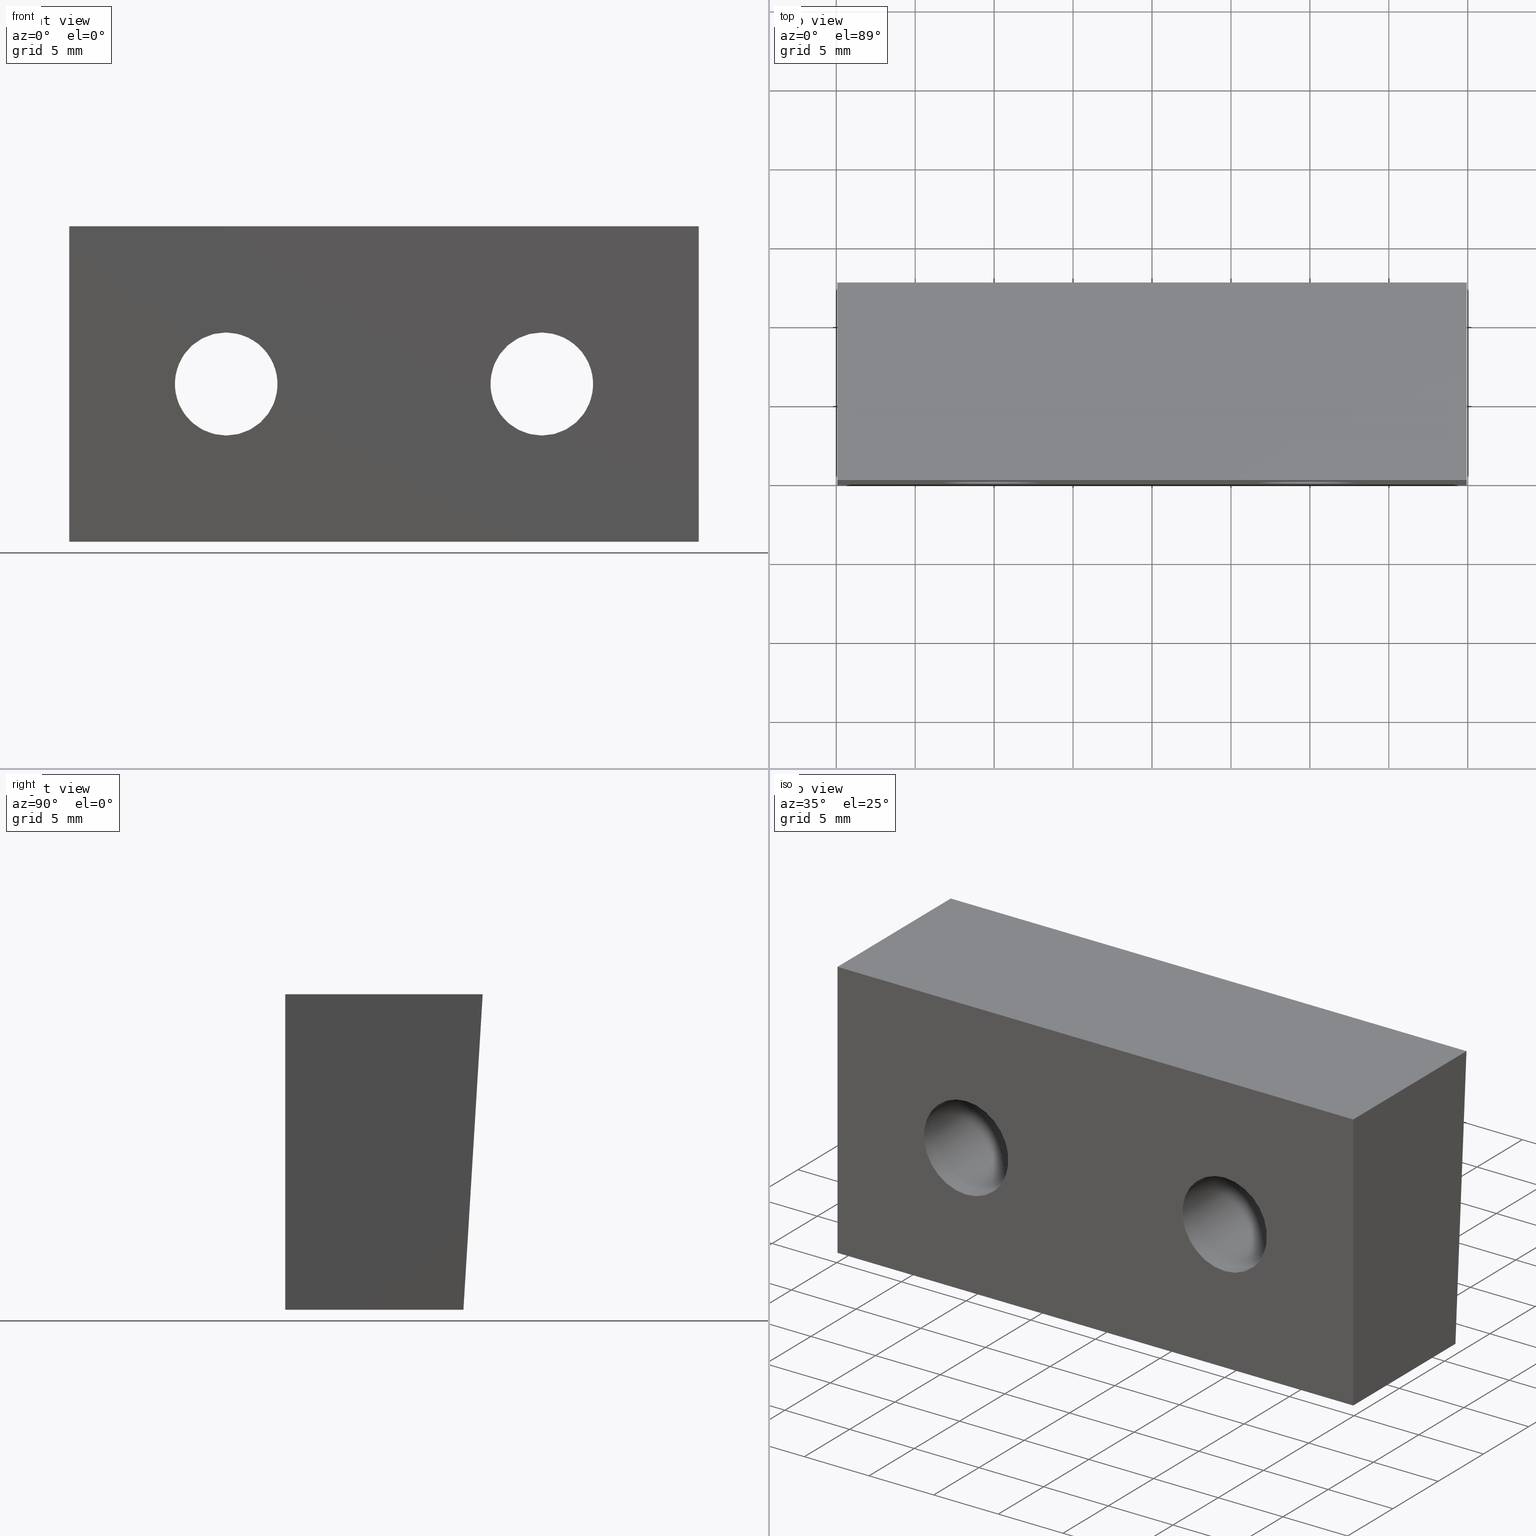
[diagram: canonical four-view strip — front | top / right | iso, engineering-drawing reading convention]
A machine part, canonical four-view strip (front | top / right | iso — engineering-drawing reading convention). The complete STEP part file that produces these views, byte-faithful:
ISO-10303-21;
HEADER;
FILE_DESCRIPTION (( 'STEP AP203' ),
    '1' );
FILE_NAME ('D030466-v2_aLIGO_SUS_HSTS_Upper Blade Clamp, Lower Side, Angled 3.5.STEP',
    '2010-06-24T14:01:29',
    ( 'Dwayne Giardina' ),
    ( 'CA Institute of Technology' ),
    'SwSTEP 2.0',
    'SolidWorks 2009',
    '' );
FILE_SCHEMA (( 'CONFIG_CONTROL_DESIGN' ));
ENDSEC;

DATA;
#1 = UNCERTAINTY_MEASURE_WITH_UNIT (LENGTH_MEASURE( 1.000000000000000100E-005 ), #109, 'distance_accuracy_value', 'NONE');
#2 = ADVANCED_BREP_SHAPE_REPRESENTATION ( 'D030466-v2_aLIGO_SUS_HSTS_Upper Blade Clamp, Lower Side, Angled 3.5', ( #388, #275 ), #19 ) ;
#3 = VECTOR ( 'NONE', #107, 39.37007874015748100 ) ;
#4 = CIRCLE ( 'NONE', #272, 0.1285000000000000000 ) ;
#5 = LINE ( 'NONE', #106, #12 ) ;
#6 = LINE ( 'NONE', #105, #3 ) ;
#7 = VECTOR ( 'NONE', #101, 39.37007874015748100 ) ;
#8 = LINE ( 'NONE', #99, #7 ) ;
#9 = VECTOR ( 'NONE', #100, 39.37007874015748100 ) ;
#10 = CIRCLE ( 'NONE', #273, 0.1285000000000000900 ) ;
#11 = LINE ( 'NONE', #155, #9 ) ;
#12 = VECTOR ( 'NONE', #108, 39.37007874015748100 ) ;
#13 = VECTOR ( 'NONE', #161, 39.37007874015748900 ) ;
#14 = LINE ( 'NONE', #162, #13 ) ;
#15 = VECTOR ( 'NONE', #160, 39.37007874015748100 ) ;
#16 = LINE ( 'NONE', #159, #15 ) ;
#17 = VECTOR ( 'NONE', #158, 39.37007874015748100 ) ;
#18 = LENGTH_MEASURE_WITH_UNIT ( LENGTH_MEASURE( 0.02539999999999999900 ), #110 );
#19 =( GEOMETRIC_REPRESENTATION_CONTEXT ( 3 ) GLOBAL_UNCERTAINTY_ASSIGNED_CONTEXT ( ( #1 ) ) GLOBAL_UNIT_ASSIGNED_CONTEXT ( ( #109, #102, #103 ) ) REPRESENTATION_CONTEXT ( 'NONE', 'WORKASPACE' ) );
#20 = PERSON_AND_ORGANIZATION ( #292, #55 ) ;
#21 = SECURITY_CLASSIFICATION ( '', '', #104 ) ;
#22 = LOCAL_TIME ( 9, 1, 29.00000000000000000, #47 ) ;
#23 = CALENDAR_DATE ( 2010, 24, 6 ) ;
#24 = DATE_AND_TIME ( #25, #36 ) ;
#25 = CALENDAR_DATE ( 2010, 24, 6 ) ;
#26 = APPROVAL_PERSON_ORGANIZATION ( #51, #288, #173 ) ;
#27 = COORDINATED_UNIVERSAL_TIME_OFFSET ( 6, 0, .BEHIND. ) ;
#28 = PERSON_AND_ORGANIZATION ( #292, #55 ) ;
#29 = APPROVAL_PERSON_ORGANIZATION ( #28, #282, #151 ) ;
#30 = COORDINATED_UNIVERSAL_TIME_OFFSET ( 6, 0, .BEHIND. ) ;
#31 = LOCAL_TIME ( 9, 1, 29.00000000000000000, #30 ) ;
#32 = DATE_AND_TIME ( #42, #43 ) ;
#33 = APPROVAL_DATE_TIME ( #32, #288 ) ;
#34 = APPROVAL_PERSON_ORGANIZATION ( #35, #277, #217 ) ;
#35 = PERSON_AND_ORGANIZATION ( #292, #55 ) ;
#36 = LOCAL_TIME ( 9, 1, 29.00000000000000000, #37 ) ;
#37 = COORDINATED_UNIVERSAL_TIME_OFFSET ( 6, 0, .BEHIND. ) ;
#38 = APPROVAL_DATE_TIME ( #41, #282 ) ;
#39 = PERSON_AND_ORGANIZATION ( #292, #55 ) ;
#40 = CALENDAR_DATE ( 2010, 24, 6 ) ;
#41 = DATE_AND_TIME ( #40, #49 ) ;
#42 = CALENDAR_DATE ( 2010, 24, 6 ) ;
#43 = LOCAL_TIME ( 9, 1, 29.00000000000000000, #27 ) ;
#44 = CALENDAR_DATE ( 2010, 24, 6 ) ;
#45 = DATE_AND_TIME ( #44, #31 ) ;
#46 = PERSON_AND_ORGANIZATION ( #292, #55 ) ;
#47 = COORDINATED_UNIVERSAL_TIME_OFFSET ( 6, 0, .BEHIND. ) ;
#48 = COORDINATED_UNIVERSAL_TIME_OFFSET ( 6, 0, .BEHIND. ) ;
#49 = LOCAL_TIME ( 9, 1, 29.00000000000000000, #48 ) ;
#50 = DATE_AND_TIME ( #23, #22 ) ;
#51 = PERSON_AND_ORGANIZATION ( #292, #55 ) ;
#52 = APPROVAL_DATE_TIME ( #24, #277 ) ;
#53 = PERSON_AND_ORGANIZATION ( #292, #55 ) ;
#54 = PERSON_AND_ORGANIZATION ( #292, #55 ) ;
#55 = ORGANIZATION ( 'UNSPECIFIED', 'UNSPECIFIED', '' ) ;
#56 = SHAPE_DEFINITION_REPRESENTATION ( #66, #2 ) ;
#57 = LINE ( 'NONE', #157, #63 ) ;
#58 = LINE ( 'NONE', #114, #60 ) ;
#59 = LINE ( 'NONE', #156, #17 ) ;
#60 = VECTOR ( 'NONE', #119, 39.37007874015748100 ) ;
#61 = LINE ( 'NONE', #127, #64 ) ;
#62 = VECTOR ( 'NONE', #129, 39.37007874015748100 ) ;
#63 = VECTOR ( 'NONE', #153, 39.37007874015748100 ) ;
#64 = VECTOR ( 'NONE', #126, 39.37007874015748100 ) ;
#65 =( BOUNDED_CURVE ( )  B_SPLINE_CURVE ( 3, ( #133, #143, #142, #141 ),
 .UNSPECIFIED., .F., .T. ) 
 B_SPLINE_CURVE_WITH_KNOTS ( ( 4, 4 ),
 ( 3.141592653589791300, 6.283185307179583600 ),
 .UNSPECIFIED. ) 
 CURVE ( )  GEOMETRIC_REPRESENTATION_ITEM ( )  RATIONAL_B_SPLINE_CURVE ( ( 1.000000000000000000, 0.3333333333333337000, 0.3333333333333337000, 1.000000000000000000 ) ) 
 REPRESENTATION_ITEM ( '' )  );
#66 = PRODUCT_DEFINITION_SHAPE ( 'NONE', 'NONE',  #274 ) ;
#67 =( BOUNDED_CURVE ( )  B_SPLINE_CURVE ( 3, ( #118, #117, #116, #115 ),
 .UNSPECIFIED., .F., .T. ) 
 B_SPLINE_CURVE_WITH_KNOTS ( ( 4, 4 ),
 ( 3.141592653589791300, 6.283185307179583600 ),
 .UNSPECIFIED. ) 
 CURVE ( )  GEOMETRIC_REPRESENTATION_ITEM ( )  RATIONAL_B_SPLINE_CURVE ( ( 1.000000000000000000, 0.3333333333333337000, 0.3333333333333337000, 1.000000000000000000 ) ) 
 REPRESENTATION_ITEM ( '' )  );
#68 =( BOUNDED_CURVE ( )  B_SPLINE_CURVE ( 3, ( #134, #139, #146, #147 ),
 .UNSPECIFIED., .F., .T. ) 
 B_SPLINE_CURVE_WITH_KNOTS ( ( 4, 4 ),
 ( -2.664535259100375700E-015, 3.141592653589791300 ),
 .UNSPECIFIED. ) 
 CURVE ( )  GEOMETRIC_REPRESENTATION_ITEM ( )  RATIONAL_B_SPLINE_CURVE ( ( 1.000000000000000000, 0.3333333333333330400, 0.3333333333333330400, 1.000000000000000000 ) ) 
 REPRESENTATION_ITEM ( '' )  );
#69 = DESIGN_CONTEXT ( 'detailed design', #214, 'design' ) ;
#70 =( BOUNDED_CURVE ( )  B_SPLINE_CURVE ( 3, ( #148, #136, #137, #75 ),
 .UNSPECIFIED., .F., .T. ) 
 B_SPLINE_CURVE_WITH_KNOTS ( ( 4, 4 ),
 ( -2.664535259100375700E-015, 3.141592653589791300 ),
 .UNSPECIFIED. ) 
 CURVE ( )  GEOMETRIC_REPRESENTATION_ITEM ( )  RATIONAL_B_SPLINE_CURVE ( ( 1.000000000000000000, 0.3333333333333330400, 0.3333333333333330400, 1.000000000000000000 ) ) 
 REPRESENTATION_ITEM ( '' )  );
#71 = DIRECTION ( 'NONE',  ( -0.0000000000000000000, 1.000000000000000000, -0.0000000000000000000 ) ) ;
#72 = CARTESIAN_POINT ( 'NONE',  ( 0.3934999999999999100, 0.8697919056601218800, -0.2650000000000000700 ) ) ;
#73 = CARTESIAN_POINT ( 'NONE',  ( -0.3935000000000000700, -0.3634528855298855300, -0.3934999999999999600 ) ) ;
#74 = CARTESIAN_POINT ( 'NONE',  ( -0.3935000000000000700, 0.8697919056601218800, -0.2649999999999999000 ) ) ;
#75 = CARTESIAN_POINT ( 'NONE',  ( -0.3935000000000000700, 0.8540731122814473300, -0.5220000000000000200 ) ) ;
#76 = DIRECTION ( 'NONE',  ( -0.0000000000000000000, 1.000000000000000000, 0.0000000000000000000 ) ) ;
#77 = DIRECTION ( 'NONE',  ( -1.000000000000000000, -0.0000000000000000000, -0.0000000000000000000 ) ) ;
#78 = PLANE ( 'NONE',  #264 ) ;
#79 = PLANE ( 'NONE',  #269 ) ;
#80 = CARTESIAN_POINT ( 'NONE',  ( -0.7850000000000001400, 2.632903660718108000E-017, -0.7869999999999999200 ) ) ;
#81 = DIRECTION ( 'NONE',  ( 0.0000000000000000000, 0.0000000000000000000, -1.000000000000000000 ) ) ;
#82 = PLANE ( 'NONE',  #268 ) ;
#83 = CARTESIAN_POINT ( 'NONE',  ( -0.7850000000000001400, 0.8860000000000000100, 0.0000000000000000000 ) ) ;
#84 = DIRECTION ( 'NONE',  ( -1.000000000000000000, -0.0000000000000000000, -0.0000000000000000000 ) ) ;
#85 = DIRECTION ( 'NONE',  ( 0.0000000000000000000, 0.0000000000000000000, 1.000000000000000000 ) ) ;
#86 = DATE_TIME_ROLE ( 'classification_date' ) ;
#87 = APPROVAL_STATUS ( 'not_yet_approved' ) ;
#88 = CARTESIAN_POINT ( 'NONE',  ( -0.7850000000000001400, 0.3937007874015748300, 0.0000000000000000000 ) ) ;
#89 = CARTESIAN_POINT ( 'NONE',  ( -1.573470656713212800, 0.8859999999999996800, 0.0000000000000000000 ) ) ;
#90 = DIRECTION ( 'NONE',  ( 1.538799405460079400E-016, -0.9981347984218670300, 0.06104853953485694900 ) ) ;
#91 = DIRECTION ( 'NONE',  ( 0.0000000000000000000, -0.06104853953485694200, -0.9981347984218669200 ) ) ;
#92 = VERTEX_POINT ( 'NONE', #221 ) ;
#93 = DIRECTION ( 'NONE',  ( 1.000000000000000000, 0.0000000000000000000, 0.0000000000000000000 ) ) ;
#94 = PERSON_AND_ORGANIZATION_ROLE ( 'design_supplier' ) ;
#95 = DIRECTION ( 'NONE',  ( 0.0000000000000000000, -1.000000000000000000, -0.0000000000000000000 ) ) ;
#96 = VERTEX_POINT ( 'NONE', #192 ) ;
#97 = DIRECTION ( 'NONE',  ( 0.0000000000000000000, 0.0000000000000000000, 1.000000000000000000 ) ) ;
#98 = CARTESIAN_POINT ( 'NONE',  ( -0.3935000000000000700, 0.3937007874015748800, -0.3934999999999999600 ) ) ;
#99 = CARTESIAN_POINT ( 'NONE',  ( 0.7850000000000001400, 0.3937007874015748300, -2.405610610987281500 ) ) ;
#100 = DIRECTION ( 'NONE',  ( -0.0000000000000000000, 1.000000000000000000, -0.0000000000000000000 ) ) ;
#101 = DIRECTION ( 'NONE',  ( -0.0000000000000000000, -0.0000000000000000000, 1.000000000000000000 ) ) ;
#102 =( NAMED_UNIT ( * ) PLANE_ANGLE_UNIT ( ) SI_UNIT ( $, .RADIAN. ) );
#103 =( NAMED_UNIT ( * ) SI_UNIT ( $, .STERADIAN. ) SOLID_ANGLE_UNIT ( ) );
#104 = SECURITY_CLASSIFICATION_LEVEL ( 'unclassified' ) ;
#105 = CARTESIAN_POINT ( 'NONE',  ( 0.7849999999999999200, 0.8860000000000000100, -0.7869999999999999200 ) ) ;
#106 = CARTESIAN_POINT ( 'NONE',  ( -0.3935000000000000700, -0.3634528855298855300, -0.2649999999999999000 ) ) ;
#107 = DIRECTION ( 'NONE',  ( -1.541674939991119000E-016, 1.000000000000000000, -0.0000000000000000000 ) ) ;
#108 = DIRECTION ( 'NONE',  ( -0.0000000000000000000, 1.000000000000000000, -0.0000000000000000000 ) ) ;
#109 =( CONVERSION_BASED_UNIT ( 'INCH', #18 ) LENGTH_UNIT ( ) NAMED_UNIT ( #233 ) );
#110 =( LENGTH_UNIT ( ) NAMED_UNIT ( * ) SI_UNIT ( $, .METRE. ) );
#111 = DIRECTION ( 'NONE',  ( -1.000000000000000000, 0.0000000000000000000, 0.0000000000000000000 ) ) ;
#112 = DIRECTION ( 'NONE',  ( 0.0000000000000000000, -1.000000000000000000, -0.0000000000000000000 ) ) ;
#113 = DIRECTION ( 'NONE',  ( 0.0000000000000000000, 0.0000000000000000000, 1.000000000000000000 ) ) ;
#114 = CARTESIAN_POINT ( 'NONE',  ( -0.7850000000000001400, 0.8859999999999997900, -7.407008177334549300E-018 ) ) ;
#115 = CARTESIAN_POINT ( 'NONE',  ( 0.3934999999999999100, 0.8697919056601218800, -0.2650000000000000700 ) ) ;
#116 = CARTESIAN_POINT ( 'NONE',  ( 0.1365000000000001800, 0.8697919056601217700, -0.2650000000000000700 ) ) ;
#117 = CARTESIAN_POINT ( 'NONE',  ( 0.1365000000000001500, 0.8540731122814472200, -0.5220000000000000200 ) ) ;
#118 = CARTESIAN_POINT ( 'NONE',  ( 0.3934999999999999100, 0.8540731122814473300, -0.5220000000000000200 ) ) ;
#119 = DIRECTION ( 'NONE',  ( 0.0000000000000000000, -0.06104853953485692800, -0.9981347984218669200 ) ) ;
#120 = DIRECTION ( 'NONE',  ( 0.0000000000000000000, -1.000000000000000000, -0.0000000000000000000 ) ) ;
#121 = DIRECTION ( 'NONE',  ( 0.0000000000000000000, 0.0000000000000000000, 1.000000000000000000 ) ) ;
#122 = CARTESIAN_POINT ( 'NONE',  ( 0.0000000000000000000, 0.0000000000000000000, 0.0000000000000000000 ) ) ;
#123 = DIRECTION ( 'NONE',  ( 0.0000000000000000000, -1.000000000000000000, -0.0000000000000000000 ) ) ;
#124 = DIRECTION ( 'NONE',  ( 0.0000000000000000000, 0.0000000000000000000, 1.000000000000000000 ) ) ;
#125 = CARTESIAN_POINT ( 'NONE',  ( 0.3934999999999999100, 0.3937007874015748800, -0.3935000000000000700 ) ) ;
#126 = DIRECTION ( 'NONE',  ( -0.0000000000000000000, 1.000000000000000000, -0.0000000000000000000 ) ) ;
#127 = CARTESIAN_POINT ( 'NONE',  ( 0.3934999999999999100, -0.3634528855298855300, -0.5220000000000000200 ) ) ;
#128 = CARTESIAN_POINT ( 'NONE',  ( -0.7850000000000001400, 0.3937007874015748300, -0.7870000000000001400 ) ) ;
#129 = DIRECTION ( 'NONE',  ( -1.541674939991119000E-016, 1.000000000000000000, -0.0000000000000000000 ) ) ;
#130 = CARTESIAN_POINT ( 'NONE',  ( -0.3935000000000000700, 0.3937007874015748800, -0.3934999999999999600 ) ) ;
#131 = CARTESIAN_POINT ( 'NONE',  ( 0.7849999999999999200, 0.8860000000000000100, 0.0000000000000000000 ) ) ;
#132 = DIRECTION ( 'NONE',  ( 1.000000000000000000, 1.541674939991119000E-016, -0.0000000000000000000 ) ) ;
#133 = CARTESIAN_POINT ( 'NONE',  ( -0.3935000000000000700, 0.8540731122814473300, -0.5220000000000000200 ) ) ;
#134 = CARTESIAN_POINT ( 'NONE',  ( 0.3934999999999999100, 0.8697919056601218800, -0.2650000000000000700 ) ) ;
#135 = CARTESIAN_POINT ( 'NONE',  ( 0.3934999999999999100, 0.3937007874015748800, -0.3935000000000000700 ) ) ;
#136 = CARTESIAN_POINT ( 'NONE',  ( -0.1364999999999997000, 0.8697919056601216600, -0.2649999999999998500 ) ) ;
#137 = CARTESIAN_POINT ( 'NONE',  ( -0.1364999999999997600, 0.8540731122814473300, -0.5220000000000002400 ) ) ;
#138 = DIRECTION ( 'NONE',  ( 0.0000000000000000000, 0.0000000000000000000, 1.000000000000000000 ) ) ;
#139 = CARTESIAN_POINT ( 'NONE',  ( 0.6505000000000001900, 0.8697919056601216600, -0.2650000000000000100 ) ) ;
#140 = CARTESIAN_POINT ( 'NONE',  ( -1.573470656713212800, 0.8378650179415684200, -0.7869999999999999200 ) ) ;
#141 = CARTESIAN_POINT ( 'NONE',  ( -0.3935000000000000700, 0.8697919056601218800, -0.2649999999999999000 ) ) ;
#142 = CARTESIAN_POINT ( 'NONE',  ( -0.6504999999999999700, 0.8697919056601217700, -0.2649999999999999600 ) ) ;
#143 = CARTESIAN_POINT ( 'NONE',  ( -0.6504999999999999700, 0.8540731122814472200, -0.5220000000000000200 ) ) ;
#144 = CARTESIAN_POINT ( 'NONE',  ( -0.3935000000000000700, -0.3634528855298855300, -0.5220000000000000200 ) ) ;
#145 = DIRECTION ( 'NONE',  ( -0.0000000000000000000, 1.000000000000000000, -0.0000000000000000000 ) ) ;
#146 = CARTESIAN_POINT ( 'NONE',  ( 0.6505000000000000800, 0.8540731122814473300, -0.5220000000000002400 ) ) ;
#147 = CARTESIAN_POINT ( 'NONE',  ( 0.3934999999999999100, 0.8540731122814473300, -0.5220000000000000200 ) ) ;
#148 = CARTESIAN_POINT ( 'NONE',  ( -0.3935000000000000700, 0.8697919056601218800, -0.2649999999999999000 ) ) ;
#149 = VERTEX_POINT ( 'NONE', #193 ) ;
#150 = PERSON_AND_ORGANIZATION_ROLE ( 'creator' ) ;
#151 = APPROVAL_ROLE ( '' ) ;
#152 = VERTEX_POINT ( 'NONE', #187 ) ;
#153 = DIRECTION ( 'NONE',  ( -0.0000000000000000000, -1.000000000000000000, -0.0000000000000000000 ) ) ;
#154 = VERTEX_POINT ( 'NONE', #183 ) ;
#155 = CARTESIAN_POINT ( 'NONE',  ( 0.3934999999999999100, -0.3634528855298855300, -0.2650000000000000700 ) ) ;
#156 = CARTESIAN_POINT ( 'NONE',  ( -0.7850000000000001400, 0.3937007874015748300, -2.405610610987281500 ) ) ;
#157 = CARTESIAN_POINT ( 'NONE',  ( -0.7850000000000001400, -9.613159877505663000E-017, -0.7869999999999999200 ) ) ;
#158 = DIRECTION ( 'NONE',  ( -0.0000000000000000000, -0.0000000000000000000, 1.000000000000000000 ) ) ;
#159 = CARTESIAN_POINT ( 'NONE',  ( -0.7850000000000001400, -9.613159877505663000E-017, 0.0000000000000000000 ) ) ;
#160 = DIRECTION ( 'NONE',  ( -0.0000000000000000000, -1.000000000000000000, -0.0000000000000000000 ) ) ;
#161 = DIRECTION ( 'NONE',  ( 0.0000000000000000000, -0.06104853953485694200, -0.9981347984218669200 ) ) ;
#162 = CARTESIAN_POINT ( 'NONE',  ( 0.7849999999999999200, 0.8860000000000000100, 0.0000000000000000000 ) ) ;
#163 = VERTEX_POINT ( 'NONE', #191 ) ;
#164 = PLANE ( 'NONE',  #263 ) ;
#165 = CARTESIAN_POINT ( 'NONE',  ( 0.7850000000000001400, 0.3937007874015748300, 0.0000000000000000000 ) ) ;
#166 = DIRECTION ( 'NONE',  ( -1.000000000000000000, 0.0000000000000000000, -0.0000000000000000000 ) ) ;
#167 = DIRECTION ( 'NONE',  ( 0.0000000000000000000, 0.0000000000000000000, 1.000000000000000000 ) ) ;
#168 = DIRECTION ( 'NONE',  ( -0.0000000000000000000, 1.000000000000000000, -0.0000000000000000000 ) ) ;
#169 = DIRECTION ( 'NONE',  ( 0.0000000000000000000, 0.0000000000000000000, 1.000000000000000000 ) ) ;
#170 = DIRECTION ( 'NONE',  ( -0.0000000000000000000, 1.000000000000000000, -0.0000000000000000000 ) ) ;
#171 = CARTESIAN_POINT ( 'NONE',  ( 0.3934999999999999100, -0.3634528855298855300, -0.3935000000000000700 ) ) ;
#172 = CARTESIAN_POINT ( 'NONE',  ( -0.3935000000000000700, -0.3634528855298855300, -0.3934999999999999600 ) ) ;
#173 = APPROVAL_ROLE ( '' ) ;
#174 = PERSON_AND_ORGANIZATION_ROLE ( 'classification_officer' ) ;
#175 = DIRECTION ( 'NONE',  ( 0.0000000000000000000, -0.0000000000000000000, 1.000000000000000000 ) ) ;
#176 = DIRECTION ( 'NONE',  ( -1.000000000000000000, 0.0000000000000000000, -0.0000000000000000000 ) ) ;
#177 = DIRECTION ( 'NONE',  ( 0.0000000000000000000, 0.0000000000000000000, -1.000000000000000000 ) ) ;
#178 = CARTESIAN_POINT ( 'NONE',  ( -0.7850000000000001400, 0.3937007874015748300, -2.405610610987281500 ) ) ;
#179 = DIRECTION ( 'NONE',  ( 0.0000000000000000000, 0.0000000000000000000, 1.000000000000000000 ) ) ;
#180 = DIRECTION ( 'NONE',  ( -1.541674939991119000E-016, 1.000000000000000000, 0.0000000000000000000 ) ) ;
#181 = PLANE ( 'NONE',  #262 ) ;
#182 = DIRECTION ( 'NONE',  ( -0.0000000000000000000, 1.000000000000000000, -0.0000000000000000000 ) ) ;
#183 = CARTESIAN_POINT ( 'NONE',  ( 0.7849999999999999200, 0.8860000000000000100, 0.0000000000000000000 ) ) ;
#184 = CARTESIAN_POINT ( 'NONE',  ( 0.3934999999999999100, 0.8540731122814473300, -0.5220000000000000200 ) ) ;
#185 = CARTESIAN_POINT ( 'NONE',  ( 0.3934999999999999100, 0.3937007874015748800, -0.2650000000000000700 ) ) ;
#186 = CARTESIAN_POINT ( 'NONE',  ( -0.7850000000000001400, 0.3937007874015748300, 0.0000000000000000000 ) ) ;
#187 = CARTESIAN_POINT ( 'NONE',  ( 0.7849999999999999200, 0.8378650179415688700, -0.7869999999999999200 ) ) ;
#188 = CARTESIAN_POINT ( 'NONE',  ( -0.7850000000000001400, -9.613159877505663000E-017, -0.7869999999999999200 ) ) ;
#189 = CARTESIAN_POINT ( 'NONE',  ( -0.3935000000000000700, 0.3937007874015748800, -0.2649999999999999000 ) ) ;
#190 = CARTESIAN_POINT ( 'NONE',  ( -0.7850000000000001400, 0.8860000000000000100, 0.0000000000000000000 ) ) ;
#191 = CARTESIAN_POINT ( 'NONE',  ( 0.7850000000000001400, 0.3937007874015748300, -0.7870000000000001400 ) ) ;
#192 = CARTESIAN_POINT ( 'NONE',  ( -0.3935000000000000700, 0.3937007874015748800, -0.5220000000000000200 ) ) ;
#193 = CARTESIAN_POINT ( 'NONE',  ( 0.3934999999999999100, 0.3937007874015748800, -0.5220000000000000200 ) ) ;
#194 = DIRECTION ( 'NONE',  ( 0.0000000000000000000, 0.0000000000000000000, 1.000000000000000000 ) ) ;
#195 = DIRECTION ( 'NONE',  ( -1.000000000000000000, 0.0000000000000000000, 0.0000000000000000000 ) ) ;
#196 = CARTESIAN_POINT ( 'NONE',  ( -0.7850000000000001400, 0.3937007874015748300, -0.7870000000000001400 ) ) ;
#197 = CARTESIAN_POINT ( 'NONE',  ( 0.3934999999999999100, -0.3634528855298855300, -0.3935000000000000700 ) ) ;
#198 = VERTEX_POINT ( 'NONE', #186 ) ;
#199 = VERTEX_POINT ( 'NONE', #184 ) ;
#200 = VERTEX_POINT ( 'NONE', #185 ) ;
#201 = VERTEX_POINT ( 'NONE', #189 ) ;
#202 = VERTEX_POINT ( 'NONE', #196 ) ;
#203 = APPROVAL_STATUS ( 'not_yet_approved' ) ;
#204 = DIRECTION ( 'NONE',  ( 1.000000000000000000, 1.541674939991119000E-016, -0.0000000000000000000 ) ) ;
#205 = CARTESIAN_POINT ( 'NONE',  ( -0.7850000000000001400, 0.8378650179415685400, -0.7869999999999999200 ) ) ;
#206 = CARTESIAN_POINT ( 'NONE',  ( 0.7849999999999999200, 0.8860000000000000100, -0.7869999999999999200 ) ) ;
#207 = MECHANICAL_CONTEXT ( 'NONE', #220, 'mechanical' ) ;
#208 = PERSON_AND_ORGANIZATION_ROLE ( 'creator' ) ;
#209 = VERTEX_POINT ( 'NONE', #190 ) ;
#210 = APPLICATION_PROTOCOL_DEFINITION ( 'international standard', 'config_control_design', 1994, #214 ) ;
#211 = VERTEX_POINT ( 'NONE', #165 ) ;
#212 = PLANE ( 'NONE',  #260 ) ;
#213 = DATE_TIME_ROLE ( 'creation_date' ) ;
#214 = APPLICATION_CONTEXT ( 'configuration controlled 3d designs of mechanical parts and assemblies' ) ;
#215 = PERSON_AND_ORGANIZATION_ROLE ( 'design_owner' ) ;
#216 = APPLICATION_PROTOCOL_DEFINITION ( 'international standard', 'config_control_design', 1994, #220 ) ;
#217 = APPROVAL_ROLE ( '' ) ;
#218 = APPROVAL_STATUS ( 'not_yet_approved' ) ;
#219 = VERTEX_POINT ( 'NONE', #74 ) ;
#220 = APPLICATION_CONTEXT ( 'configuration controlled 3d designs of mechanical parts and assemblies' ) ;
#221 = CARTESIAN_POINT ( 'NONE',  ( -0.3935000000000000700, 0.8540731122814473300, -0.5220000000000000200 ) ) ;
#222 = CARTESIAN_POINT ( 'NONE',  ( -0.7850000000000001400, 2.632903660718108000E-017, 0.0000000000000000000 ) ) ;
#223 = VERTEX_POINT ( 'NONE', #72 ) ;
#224 = VERTEX_POINT ( 'NONE', #205 ) ;
#225 = ADVANCED_FACE ( 'NONE', ( #331 ), #212, .T. ) ;
#226 = ADVANCED_FACE ( 'NONE', ( #316 ), #295, .F. ) ;
#227 = ADVANCED_FACE ( 'NONE', ( #382 ), #181, .T. ) ;
#228 = ADVANCED_FACE ( 'NONE', ( #341 ), #164, .F. ) ;
#229 = ADVANCED_FACE ( 'NONE', ( #326 ), #371, .F. ) ;
#230 = ADVANCED_FACE ( 'NONE', ( #301, #335, #314 ), #78, .F. ) ;
#231 = ADVANCED_FACE ( 'NONE', ( #334 ), #379, .F. ) ;
#232 = ADVANCED_FACE ( 'NONE', ( #322 ), #309, .F. ) ;
#233 = DIMENSIONAL_EXPONENTS ( 1.000000000000000000, 0.0000000000000000000, 0.0000000000000000000, 0.0000000000000000000, 0.0000000000000000000, 0.0000000000000000000, 0.0000000000000000000 ) ;
#234 = ADVANCED_FACE ( 'NONE', ( #325 ), #82, .T. ) ;
#235 = ADVANCED_FACE ( 'NONE', ( #304, #355, #356 ), #79, .F. ) ;
#236 = EDGE_CURVE ( 'NONE', #211, #198, #383, .T. ) ;
#237 = EDGE_CURVE ( 'NONE', #154, #209, #318, .T. ) ;
#238 = EDGE_CURVE ( 'NONE', #219, #92, #70, .T. ) ;
#239 = EDGE_CURVE ( 'NONE', #149, #200, #296, .T. ) ;
#240 = EDGE_CURVE ( 'NONE', #223, #199, #68, .T. ) ;
#241 = EDGE_CURVE ( 'NONE', #96, #92, #299, .T. ) ;
#242 = EDGE_CURVE ( 'NONE', #92, #219, #65, .T. ) ;
#243 = EDGE_CURVE ( 'NONE', #224, #152, #354, .T. ) ;
#244 = EDGE_CURVE ( 'NONE', #96, #201, #344, .T. ) ;
#245 = EDGE_CURVE ( 'NONE', #163, #202, #366, .T. ) ;
#246 = EDGE_CURVE ( 'NONE', #211, #154, #330, .T. ) ;
#247 = EDGE_CURVE ( 'NONE', #199, #223, #67, .T. ) ;
#248 = EDGE_CURVE ( 'NONE', #149, #199, #61, .T. ) ;
#249 = EDGE_CURVE ( 'NONE', #200, #149, #4, .T. ) ;
#250 = EDGE_CURVE ( 'NONE', #209, #224, #58, .T. ) ;
#251 = EDGE_CURVE ( 'NONE', #224, #202, #57, .T. ) ;
#252 = EDGE_CURVE ( 'NONE', #202, #198, #59, .T. ) ;
#253 = EDGE_CURVE ( 'NONE', #209, #198, #16, .T. ) ;
#254 = EDGE_CURVE ( 'NONE', #154, #152, #14, .T. ) ;
#255 = EDGE_CURVE ( 'NONE', #201, #96, #10, .T. ) ;
#256 = EDGE_CURVE ( 'NONE', #200, #223, #11, .T. ) ;
#257 = EDGE_CURVE ( 'NONE', #163, #211, #8, .T. ) ;
#258 = EDGE_CURVE ( 'NONE', #163, #152, #6, .T. ) ;
#259 = EDGE_CURVE ( 'NONE', #201, #219, #5, .T. ) ;
#260 = AXIS2_PLACEMENT_3D ( 'NONE', #188, #195, #194 ) ;
#261 = AXIS2_PLACEMENT_3D ( 'NONE', #197, #71, #179 ) ;
#262 = AXIS2_PLACEMENT_3D ( 'NONE', #206, #204, #180 ) ;
#263 = AXIS2_PLACEMENT_3D ( 'NONE', #222, #177, #166 ) ;
#264 = AXIS2_PLACEMENT_3D ( 'NONE', #89, #90, #91 ) ;
#265 = AXIS2_PLACEMENT_3D ( 'NONE', #172, #168, #167 ) ;
#266 = AXIS2_PLACEMENT_3D ( 'NONE', #73, #182, #85 ) ;
#267 = AXIS2_PLACEMENT_3D ( 'NONE', #171, #170, #169 ) ;
#268 = AXIS2_PLACEMENT_3D ( 'NONE', #80, #81, #176 ) ;
#269 = AXIS2_PLACEMENT_3D ( 'NONE', #178, #76, #175 ) ;
#270 = AXIS2_PLACEMENT_3D ( 'NONE', #135, #120, #138 ) ;
#271 = AXIS2_PLACEMENT_3D ( 'NONE', #130, #112, #113 ) ;
#272 = AXIS2_PLACEMENT_3D ( 'NONE', #125, #123, #124 ) ;
#273 = AXIS2_PLACEMENT_3D ( 'NONE', #98, #95, #97 ) ;
#274 = PRODUCT_DEFINITION ( 'UNKNOWN', '', #280, #69 ) ;
#275 = AXIS2_PLACEMENT_3D ( 'NONE', #122, #121, #93 ) ;
#276 = CC_DESIGN_PERSON_AND_ORGANIZATION_ASSIGNMENT ( #54, #215, ( #293 ) ) ;
#277 = APPROVAL ( #218, 'UNSPECIFIED' ) ;
#278 = CC_DESIGN_APPROVAL ( #277, ( #274 ) ) ;
#279 = CC_DESIGN_PERSON_AND_ORGANIZATION_ASSIGNMENT ( #53, #208, ( #274 ) ) ;
#280 = PRODUCT_DEFINITION_FORMATION_WITH_SPECIFIED_SOURCE ( 'ANY', '', #293, .NOT_KNOWN. ) ;
#281 = CC_DESIGN_DATE_AND_TIME_ASSIGNMENT ( #45, #213, ( #274 ) ) ;
#282 = APPROVAL ( #203, 'UNSPECIFIED' ) ;
#283 = CC_DESIGN_APPROVAL ( #282, ( #280 ) ) ;
#284 = CC_DESIGN_PERSON_AND_ORGANIZATION_ASSIGNMENT ( #39, #150, ( #280 ) ) ;
#285 = CC_DESIGN_PERSON_AND_ORGANIZATION_ASSIGNMENT ( #20, #94, ( #280 ) ) ;
#286 = CC_DESIGN_PERSON_AND_ORGANIZATION_ASSIGNMENT ( #46, #174, ( #21 ) ) ;
#287 = CC_DESIGN_DATE_AND_TIME_ASSIGNMENT ( #50, #86, ( #21 ) ) ;
#288 = APPROVAL ( #87, 'UNSPECIFIED' ) ;
#289 = CC_DESIGN_APPROVAL ( #288, ( #21 ) ) ;
#290 = CC_DESIGN_SECURITY_CLASSIFICATION ( #21, ( #280 ) ) ;
#291 = PRODUCT_RELATED_PRODUCT_CATEGORY ( 'detail', '', ( #293 ) ) ;
#292 = PERSON ( 'UNSPECIFIED', 'UNSPECIFIED', 'UNSPECIFIED', ('UNSPECIFIED'), ('UNSPECIFIED'), ('UNSPECIFIED') ) ;
#293 = PRODUCT ( 'D030466-v2_aLIGO_SUS_HSTS_Upper Blade Clamp, Lower Side, Angled 3.5', 'D030466-v2_aLIGO_SUS_HSTS_Upper Blade Clamp, Lower Side, Angled 3.5', '', ( #207 ) ) ;
#294 = ORIENTED_EDGE ( 'NONE', *, *, #241, .T. ) ;
#295 = CYLINDRICAL_SURFACE ( 'NONE', #261, 0.1285000000000000000 ) ;
#296 = CIRCLE ( 'NONE', #270, 0.1285000000000000000 ) ;
#297 = ORIENTED_EDGE ( 'NONE', *, *, #244, .F. ) ;
#298 = ORIENTED_EDGE ( 'NONE', *, *, #239, .T. ) ;
#299 = LINE ( 'NONE', #144, #381 ) ;
#300 = ORIENTED_EDGE ( 'NONE', *, *, #251, .F. ) ;
#301 = FACE_BOUND ( 'NONE', #323, .T. ) ;
#302 = EDGE_LOOP ( 'NONE', ( #328, #338, #369, #376 ) ) ;
#303 = ORIENTED_EDGE ( 'NONE', *, *, #254, .T. ) ;
#304 = FACE_BOUND ( 'NONE', #353, .T. ) ;
#305 = ORIENTED_EDGE ( 'NONE', *, *, #257, .T. ) ;
#306 = ORIENTED_EDGE ( 'NONE', *, *, #251, .T. ) ;
#307 = ORIENTED_EDGE ( 'NONE', *, *, #243, .T. ) ;
#308 = ORIENTED_EDGE ( 'NONE', *, *, #249, .F. ) ;
#309 = CYLINDRICAL_SURFACE ( 'NONE', #267, 0.1285000000000000000 ) ;
#310 = ORIENTED_EDGE ( 'NONE', *, *, #245, .F. ) ;
#311 = ORIENTED_EDGE ( 'NONE', *, *, #253, .F. ) ;
#312 = ORIENTED_EDGE ( 'NONE', *, *, #250, .F. ) ;
#313 = ORIENTED_EDGE ( 'NONE', *, *, #254, .F. ) ;
#314 = FACE_BOUND ( 'NONE', #327, .T. ) ;
#315 = ORIENTED_EDGE ( 'NONE', *, *, #241, .F. ) ;
#316 = FACE_OUTER_BOUND ( 'NONE', #378, .T. ) ;
#317 = ORIENTED_EDGE ( 'NONE', *, *, #237, .T. ) ;
#318 = LINE ( 'NONE', #83, #357 ) ;
#319 = ORIENTED_EDGE ( 'NONE', *, *, #258, .F. ) ;
#320 = ORIENTED_EDGE ( 'NONE', *, *, #256, .T. ) ;
#321 = EDGE_LOOP ( 'NONE', ( #305, #362, #346, #310 ) ) ;
#322 = FACE_OUTER_BOUND ( 'NONE', #302, .T. ) ;
#323 = EDGE_LOOP ( 'NONE', ( #352, #361 ) ) ;
#324 = ORIENTED_EDGE ( 'NONE', *, *, #242, .F. ) ;
#325 = FACE_OUTER_BOUND ( 'NONE', #340, .T. ) ;
#326 = FACE_OUTER_BOUND ( 'NONE', #345, .T. ) ;
#327 = EDGE_LOOP ( 'NONE', ( #375, #324 ) ) ;
#328 = ORIENTED_EDGE ( 'NONE', *, *, #249, .T. ) ;
#329 = ORIENTED_EDGE ( 'NONE', *, *, #242, .T. ) ;
#330 = LINE ( 'NONE', #131, #62 ) ;
#331 = FACE_OUTER_BOUND ( 'NONE', #336, .T. ) ;
#332 = EDGE_LOOP ( 'NONE', ( #339, #294, #329, #380 ) ) ;
#333 = ORIENTED_EDGE ( 'NONE', *, *, #253, .T. ) ;
#334 = FACE_OUTER_BOUND ( 'NONE', #332, .T. ) ;
#335 = FACE_OUTER_BOUND ( 'NONE', #387, .T. ) ;
#336 = EDGE_LOOP ( 'NONE', ( #372, #311, #367, #306 ) ) ;
#337 = ORIENTED_EDGE ( 'NONE', *, *, #237, .F. ) ;
#338 = ORIENTED_EDGE ( 'NONE', *, *, #248, .T. ) ;
#339 = ORIENTED_EDGE ( 'NONE', *, *, #255, .T. ) ;
#340 = EDGE_LOOP ( 'NONE', ( #349, #300, #307, #319 ) ) ;
#341 = FACE_OUTER_BOUND ( 'NONE', #363, .T. ) ;
#342 = ORIENTED_EDGE ( 'NONE', *, *, #259, .T. ) ;
#343 = ORIENTED_EDGE ( 'NONE', *, *, #248, .F. ) ;
#344 = CIRCLE ( 'NONE', #271, 0.1285000000000000900 ) ;
#345 = EDGE_LOOP ( 'NONE', ( #315, #377, #342, #360 ) ) ;
#346 = ORIENTED_EDGE ( 'NONE', *, *, #252, .F. ) ;
#347 = VECTOR ( 'NONE', #111, 39.37007874015748100 ) ;
#348 = ORIENTED_EDGE ( 'NONE', *, *, #240, .T. ) ;
#349 = ORIENTED_EDGE ( 'NONE', *, *, #245, .T. ) ;
#350 = ORIENTED_EDGE ( 'NONE', *, *, #239, .F. ) ;
#351 = CLOSED_SHELL ( 'NONE', ( #232, #231, #225, #227, #234, #228, #229, #226, #230, #235 ) ) ;
#352 = ORIENTED_EDGE ( 'NONE', *, *, #240, .F. ) ;
#353 = EDGE_LOOP ( 'NONE', ( #308, #350 ) ) ;
#354 = LINE ( 'NONE', #140, #386 ) ;
#355 = FACE_OUTER_BOUND ( 'NONE', #321, .T. ) ;
#356 = FACE_BOUND ( 'NONE', #359, .T. ) ;
#357 = VECTOR ( 'NONE', #84, 39.37007874015748100 ) ;
#358 = ORIENTED_EDGE ( 'NONE', *, *, #236, .F. ) ;
#359 = EDGE_LOOP ( 'NONE', ( #373, #297 ) ) ;
#360 = ORIENTED_EDGE ( 'NONE', *, *, #238, .T. ) ;
#361 = ORIENTED_EDGE ( 'NONE', *, *, #247, .F. ) ;
#362 = ORIENTED_EDGE ( 'NONE', *, *, #236, .T. ) ;
#363 = EDGE_LOOP ( 'NONE', ( #333, #358, #365, #317 ) ) ;
#364 = ORIENTED_EDGE ( 'NONE', *, *, #243, .F. ) ;
#365 = ORIENTED_EDGE ( 'NONE', *, *, #246, .T. ) ;
#366 = LINE ( 'NONE', #128, #347 ) ;
#367 = ORIENTED_EDGE ( 'NONE', *, *, #250, .T. ) ;
#368 = EDGE_LOOP ( 'NONE', ( #374, #370, #313, #385 ) ) ;
#369 = ORIENTED_EDGE ( 'NONE', *, *, #247, .T. ) ;
#370 = ORIENTED_EDGE ( 'NONE', *, *, #258, .T. ) ;
#371 = CYLINDRICAL_SURFACE ( 'NONE', #265, 0.1285000000000000900 ) ;
#372 = ORIENTED_EDGE ( 'NONE', *, *, #252, .T. ) ;
#373 = ORIENTED_EDGE ( 'NONE', *, *, #255, .F. ) ;
#374 = ORIENTED_EDGE ( 'NONE', *, *, #257, .F. ) ;
#375 = ORIENTED_EDGE ( 'NONE', *, *, #238, .F. ) ;
#376 = ORIENTED_EDGE ( 'NONE', *, *, #256, .F. ) ;
#377 = ORIENTED_EDGE ( 'NONE', *, *, #244, .T. ) ;
#378 = EDGE_LOOP ( 'NONE', ( #343, #298, #320, #348 ) ) ;
#379 = CYLINDRICAL_SURFACE ( 'NONE', #266, 0.1285000000000000900 ) ;
#380 = ORIENTED_EDGE ( 'NONE', *, *, #259, .F. ) ;
#381 = VECTOR ( 'NONE', #145, 39.37007874015748100 ) ;
#382 = FACE_OUTER_BOUND ( 'NONE', #368, .T. ) ;
#383 = LINE ( 'NONE', #88, #384 ) ;
#384 = VECTOR ( 'NONE', #77, 39.37007874015748100 ) ;
#385 = ORIENTED_EDGE ( 'NONE', *, *, #246, .F. ) ;
#386 = VECTOR ( 'NONE', #132, 39.37007874015748100 ) ;
#387 = EDGE_LOOP ( 'NONE', ( #337, #303, #364, #312 ) ) ;
#388 = MANIFOLD_SOLID_BREP ( 'NONE', #351 ) ;
ENDSEC;
END-ISO-10303-21;
